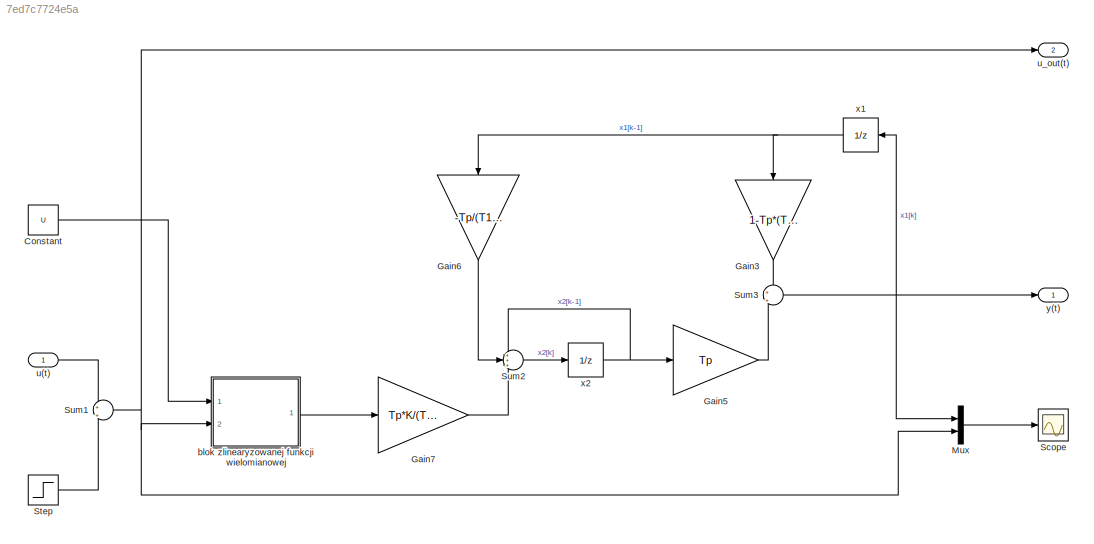
MODEL slx_7ed7c7724e5a
KIND model
BLOCK [Constant] Constant
  Value = U
BLOCK [Gain] Gain3
  Gain = 1-Tp*(T1+T2)/(T1*T2)
  OutDataTypeStr = Inherit: Inherit via internal rule
  ParamDataTypeStr = Inherit: Inherit via internal rule
  SaturateOnIntegerOverflow = off
BLOCK [Gain] Gain5
  Gain = Tp
  OutDataTypeStr = Inherit: Inherit via internal rule
  ParamDataTypeStr = Inherit: Inherit via internal rule
  SaturateOnIntegerOverflow = off
BLOCK [Gain] Gain6
  Gain = -Tp/(T1*T2)
  OutDataTypeStr = Inherit: Inherit via internal rule
  ParamDataTypeStr = Inherit: Inherit via internal rule
  SaturateOnIntegerOverflow = off
BLOCK [Gain] Gain7
  Gain = Tp*K/(T1*T2)
  OutDataTypeStr = Inherit: Inherit via internal rule
  ParamDataTypeStr = Inherit: Inherit via internal rule
  SaturateOnIntegerOverflow = off
BLOCK [Mux] Mux
  DisplayOption = bar
  Inputs = 2
  Ports = [2, 1]
BLOCK [Scope] Scope
  Floating = off
  NumInputPorts = 1
  Ports = [1]
  ShowLegends = off
BLOCK [Step] Step
  After = step(3)
  Before = step(2)
  SampleTime = 0
  Time = step(1)
BLOCK [Sum] Sum1
  IconShape = round
  InputSameDT = off
  Inputs = +|+
  OutDataTypeStr = Inherit: Inherit via internal rule
  Ports = [2, 1]
  SaturateOnIntegerOverflow = off
BLOCK [Sum] Sum2
  IconShape = round
  InputSameDT = off
  Inputs = +++
  OutDataTypeStr = Inherit: Inherit via internal rule
  Ports = [3, 1]
  SaturateOnIntegerOverflow = off
BLOCK [Sum] Sum3
  IconShape = round
  InputSameDT = off
  Inputs = +|+
  OutDataTypeStr = Inherit: Inherit via internal rule
  Ports = [2, 1]
  SaturateOnIntegerOverflow = off
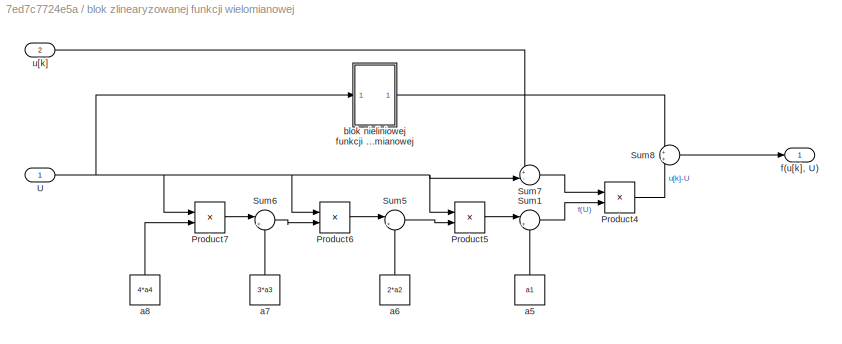
BLOCK [SubSystem] blok zlinearyzowanej funkcji wielomianowej
  Ports = [2, 1]
  RequestExecContextInheritance = off
BLOCK [Product] blok zlinearyzowanej funkcji wielomianowej/Product4
  InputSameDT = off
  OutDataTypeStr = Inherit: Inherit via internal rule
  Ports = [2, 1]
  RndMeth = Floor
  SaturateOnIntegerOverflow = off
BLOCK [Product] blok zlinearyzowanej funkcji wielomianowej/Product5
  InputSameDT = off
  OutDataTypeStr = Inherit: Inherit via internal rule
  Ports = [2, 1]
  RndMeth = Floor
  SaturateOnIntegerOverflow = off
BLOCK [Product] blok zlinearyzowanej funkcji wielomianowej/Product6
  InputSameDT = off
  OutDataTypeStr = Inherit: Inherit via internal rule
  Ports = [2, 1]
  RndMeth = Floor
  SaturateOnIntegerOverflow = off
BLOCK [Product] blok zlinearyzowanej funkcji wielomianowej/Product7
  InputSameDT = off
  OutDataTypeStr = Inherit: Inherit via internal rule
  Ports = [2, 1]
  RndMeth = Floor
  SaturateOnIntegerOverflow = off
BLOCK [Sum] blok zlinearyzowanej funkcji wielomianowej/Sum1
  IconShape = round
  InputSameDT = off
  Inputs = |++
  OutDataTypeStr = Inherit: Inherit via internal rule
  Ports = [2, 1]
  SaturateOnIntegerOverflow = off
BLOCK [Sum] blok zlinearyzowanej funkcji wielomianowej/Sum5
  IconShape = round
  InputSameDT = off
  Inputs = |++
  OutDataTypeStr = Inherit: Inherit via internal rule
  Ports = [2, 1]
  SaturateOnIntegerOverflow = off
BLOCK [Sum] blok zlinearyzowanej funkcji wielomianowej/Sum6
  IconShape = round
  InputSameDT = off
  Inputs = |++
  OutDataTypeStr = Inherit: Inherit via internal rule
  Ports = [2, 1]
  SaturateOnIntegerOverflow = off
BLOCK [Sum] blok zlinearyzowanej funkcji wielomianowej/Sum7
  IconShape = round
  InputSameDT = off
  Inputs = +-|
  OutDataTypeStr = Inherit: Inherit via internal rule
  Ports = [2, 1]
  SaturateOnIntegerOverflow = off
BLOCK [Sum] blok zlinearyzowanej funkcji wielomianowej/Sum8
  IconShape = round
  InputSameDT = off
  OutDataTypeStr = Inherit: Inherit via internal rule
  Ports = [2, 1]
  SaturateOnIntegerOverflow = off
BLOCK [Inport] blok zlinearyzowanej funkcji wielomianowej/U
  IconDisplay = Port number
BLOCK [Constant] blok zlinearyzowanej funkcji wielomianowej/a5
  Value = a1
BLOCK [Constant] blok zlinearyzowanej funkcji wielomianowej/a6
  Value = 2*a2
BLOCK [Constant] blok zlinearyzowanej funkcji wielomianowej/a7
  Value = 3*a3
BLOCK [Constant] blok zlinearyzowanej funkcji wielomianowej/a8
  Value = 4*a4
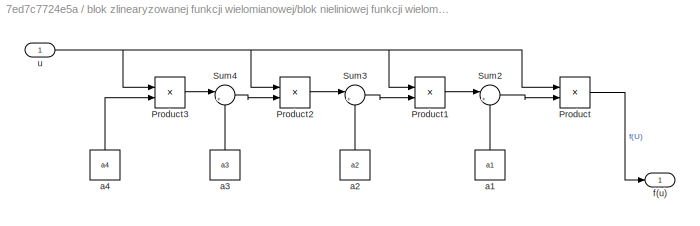
BLOCK [SubSystem] blok zlinearyzowanej funkcji wielomianowej/blok nieliniowej funkcji wielomianowej
  Ports = [1, 1]
  RequestExecContextInheritance = off
BLOCK [Product] blok zlinearyzowanej funkcji wielomianowej/blok nieliniowej funkcji wielomianowej/Product
  InputSameDT = off
  OutDataTypeStr = Inherit: Inherit via internal rule
  Ports = [2, 1]
  RndMeth = Floor
  SaturateOnIntegerOverflow = off
BLOCK [Product] blok zlinearyzowanej funkcji wielomianowej/blok nieliniowej funkcji wielomianowej/Product1
  InputSameDT = off
  OutDataTypeStr = Inherit: Inherit via internal rule
  Ports = [2, 1]
  RndMeth = Floor
  SaturateOnIntegerOverflow = off
BLOCK [Product] blok zlinearyzowanej funkcji wielomianowej/blok nieliniowej funkcji wielomianowej/Product2
  InputSameDT = off
  OutDataTypeStr = Inherit: Inherit via internal rule
  Ports = [2, 1]
  RndMeth = Floor
  SaturateOnIntegerOverflow = off
BLOCK [Product] blok zlinearyzowanej funkcji wielomianowej/blok nieliniowej funkcji wielomianowej/Product3
  InputSameDT = off
  OutDataTypeStr = Inherit: Inherit via internal rule
  Ports = [2, 1]
  RndMeth = Floor
  SaturateOnIntegerOverflow = off
BLOCK [Sum] blok zlinearyzowanej funkcji wielomianowej/blok nieliniowej funkcji wielomianowej/Sum2
  IconShape = round
  InputSameDT = off
  Inputs = |++
  OutDataTypeStr = Inherit: Inherit via internal rule
  Ports = [2, 1]
  SaturateOnIntegerOverflow = off
BLOCK [Sum] blok zlinearyzowanej funkcji wielomianowej/blok nieliniowej funkcji wielomianowej/Sum3
  IconShape = round
  InputSameDT = off
  Inputs = |++
  OutDataTypeStr = Inherit: Inherit via internal rule
  Ports = [2, 1]
  SaturateOnIntegerOverflow = off
BLOCK [Sum] blok zlinearyzowanej funkcji wielomianowej/blok nieliniowej funkcji wielomianowej/Sum4
  IconShape = round
  InputSameDT = off
  Inputs = |++
  OutDataTypeStr = Inherit: Inherit via internal rule
  Ports = [2, 1]
  SaturateOnIntegerOverflow = off
BLOCK [Constant] blok zlinearyzowanej funkcji wielomianowej/blok nieliniowej funkcji wielomianowej/a1
  Value = a1
BLOCK [Constant] blok zlinearyzowanej funkcji wielomianowej/blok nieliniowej funkcji wielomianowej/a2
  Value = a2
BLOCK [Constant] blok zlinearyzowanej funkcji wielomianowej/blok nieliniowej funkcji wielomianowej/a3
  Value = a3
BLOCK [Constant] blok zlinearyzowanej funkcji wielomianowej/blok nieliniowej funkcji wielomianowej/a4
  Value = a4
BLOCK [Outport] blok zlinearyzowanej funkcji wielomianowej/blok nieliniowej funkcji wielomianowej/f(u)
  IconDisplay = Port number
BLOCK [Inport] blok zlinearyzowanej funkcji wielomianowej/blok nieliniowej funkcji wielomianowej/u
  IconDisplay = Port number
BLOCK [Outport] blok zlinearyzowanej funkcji wielomianowej/f(u[k], U)
  IconDisplay = Port number
BLOCK [Inport] blok zlinearyzowanej funkcji wielomianowej/u[k]
  IconDisplay = Port number
  Port = 2
BLOCK [Inport] u(t)
  IconDisplay = Port number
BLOCK [Outport] u_out(t)
  IconDisplay = Port number
  Port = 2
BLOCK [UnitDelay] x1
  InitialCondition = x0(1)
  InputProcessing = Elements as channels (sample based)
  SampleTime = Tp
BLOCK [UnitDelay] x2
  InitialCondition = x0(2)
  InputProcessing = Elements as channels (sample based)
  SampleTime = Tp
BLOCK [Outport] y(t)
  IconDisplay = Port number
LINE Constant:1 -> blok zlinearyzowanej funkcji wielomianowej:1
LINE Gain3:1 -> Sum3:1
LINE Gain5:1 -> Sum3:2
LINE Gain6:1 -> Sum2:2
LINE Gain7:1 -> Sum2:3
LINE Mux:1 -> Scope:1
LINE Step:1 -> Sum1:2
NET Sum1:1 -> Mux:2, blok zlinearyzowanej funkcji wielomianowej:2, u_out(t):1
LINE Sum2:1 -> x2:1
NET Sum3:1 -> Mux:1, x1:1, y(t):1
LINE blok zlinearyzowanej funkcji wielomianowej/Product4:1 -> blok zlinearyzowanej funkcji wielomianowej/Sum8:2
LINE blok zlinearyzowanej funkcji wielomianowej/Product5:1 -> blok zlinearyzowanej funkcji wielomianowej/Sum1:1
LINE blok zlinearyzowanej funkcji wielomianowej/Product6:1 -> blok zlinearyzowanej funkcji wielomianowej/Sum5:1
LINE blok zlinearyzowanej funkcji wielomianowej/Product7:1 -> blok zlinearyzowanej funkcji wielomianowej/Sum6:1
LINE blok zlinearyzowanej funkcji wielomianowej/Sum1:1 -> blok zlinearyzowanej funkcji wielomianowej/Product4:2
LINE blok zlinearyzowanej funkcji wielomianowej/Sum5:1 -> blok zlinearyzowanej funkcji wielomianowej/Product5:2
LINE blok zlinearyzowanej funkcji wielomianowej/Sum6:1 -> blok zlinearyzowanej funkcji wielomianowej/Product6:2
LINE blok zlinearyzowanej funkcji wielomianowej/Sum7:1 -> blok zlinearyzowanej funkcji wielomianowej/Product4:1
LINE blok zlinearyzowanej funkcji wielomianowej/Sum8:1 -> blok zlinearyzowanej funkcji wielomianowej/f(u[k], U):1
NET blok zlinearyzowanej funkcji wielomianowej/U:1 -> blok zlinearyzowanej funkcji wielomianowej/Product5:1, blok zlinearyzowanej funkcji wielomianowej/Product6:1, blok zlinearyzowanej funkcji wielomianowej/Product7:1, blok zlinearyzowanej funkcji wielomianowej/Sum7:2, blok zlinearyzowanej funkcji wielomianowej/blok nieliniowej funkcji wielomianowej:1
LINE blok zlinearyzowanej funkcji wielomianowej/a5:1 -> blok zlinearyzowanej funkcji wielomianowej/Sum1:2
LINE blok zlinearyzowanej funkcji wielomianowej/a6:1 -> blok zlinearyzowanej funkcji wielomianowej/Sum5:2
LINE blok zlinearyzowanej funkcji wielomianowej/a7:1 -> blok zlinearyzowanej funkcji wielomianowej/Sum6:2
LINE blok zlinearyzowanej funkcji wielomianowej/a8:1 -> blok zlinearyzowanej funkcji wielomianowej/Product7:2
LINE blok zlinearyzowanej funkcji wielomianowej/blok nieliniowej funkcji wielomianowej/Product1:1 -> blok zlinearyzowanej funkcji wielomianowej/blok nieliniowej funkcji wielomianowej/Sum2:1
LINE blok zlinearyzowanej funkcji wielomianowej/blok nieliniowej funkcji wielomianowej/Product2:1 -> blok zlinearyzowanej funkcji wielomianowej/blok nieliniowej funkcji wielomianowej/Sum3:1
LINE blok zlinearyzowanej funkcji wielomianowej/blok nieliniowej funkcji wielomianowej/Product3:1 -> blok zlinearyzowanej funkcji wielomianowej/blok nieliniowej funkcji wielomianowej/Sum4:1
LINE blok zlinearyzowanej funkcji wielomianowej/blok nieliniowej funkcji wielomianowej/Product:1 -> blok zlinearyzowanej funkcji wielomianowej/blok nieliniowej funkcji wielomianowej/f(u):1
LINE blok zlinearyzowanej funkcji wielomianowej/blok nieliniowej funkcji wielomianowej/Sum2:1 -> blok zlinearyzowanej funkcji wielomianowej/blok nieliniowej funkcji wielomianowej/Product:2
LINE blok zlinearyzowanej funkcji wielomianowej/blok nieliniowej funkcji wielomianowej/Sum3:1 -> blok zlinearyzowanej funkcji wielomianowej/blok nieliniowej funkcji wielomianowej/Product1:2
LINE blok zlinearyzowanej funkcji wielomianowej/blok nieliniowej funkcji wielomianowej/Sum4:1 -> blok zlinearyzowanej funkcji wielomianowej/blok nieliniowej funkcji wielomianowej/Product2:2
LINE blok zlinearyzowanej funkcji wielomianowej/blok nieliniowej funkcji wielomianowej/a1:1 -> blok zlinearyzowanej funkcji wielomianowej/blok nieliniowej funkcji wielomianowej/Sum2:2
LINE blok zlinearyzowanej funkcji wielomianowej/blok nieliniowej funkcji wielomianowej/a2:1 -> blok zlinearyzowanej funkcji wielomianowej/blok nieliniowej funkcji wielomianowej/Sum3:2
LINE blok zlinearyzowanej funkcji wielomianowej/blok nieliniowej funkcji wielomianowej/a3:1 -> blok zlinearyzowanej funkcji wielomianowej/blok nieliniowej funkcji wielomianowej/Sum4:2
LINE blok zlinearyzowanej funkcji wielomianowej/blok nieliniowej funkcji wielomianowej/a4:1 -> blok zlinearyzowanej funkcji wielomianowej/blok nieliniowej funkcji wielomianowej/Product3:2
NET blok zlinearyzowanej funkcji wielomianowej/blok nieliniowej funkcji wielomianowej/u:1 -> blok zlinearyzowanej funkcji wielomianowej/blok nieliniowej funkcji wielomianowej/Product1:1, blok zlinearyzowanej funkcji wielomianowej/blok nieliniowej funkcji wielomianowej/Product2:1, blok zlinearyzowanej funkcji wielomianowej/blok nieliniowej funkcji wielomianowej/Product3:1, blok zlinearyzowanej funkcji wielomianowej/blok nieliniowej funkcji wielomianowej/Product:1
LINE blok zlinearyzowanej funkcji wielomianowej/blok nieliniowej funkcji wielomianowej:1 -> blok zlinearyzowanej funkcji wielomianowej/Sum8:1
LINE blok zlinearyzowanej funkcji wielomianowej/u[k]:1 -> blok zlinearyzowanej funkcji wielomianowej/Sum7:1
LINE blok zlinearyzowanej funkcji wielomianowej:1 -> Gain7:1
LINE u(t):1 -> Sum1:1
NET x1:1 -> Gain3:1, Gain6:1
NET x2:1 -> Gain5:1, Sum2:1
note: NET lines group one-source signal fan-out (src -> all destinations, sorted); 1:1 wires keep LINE
